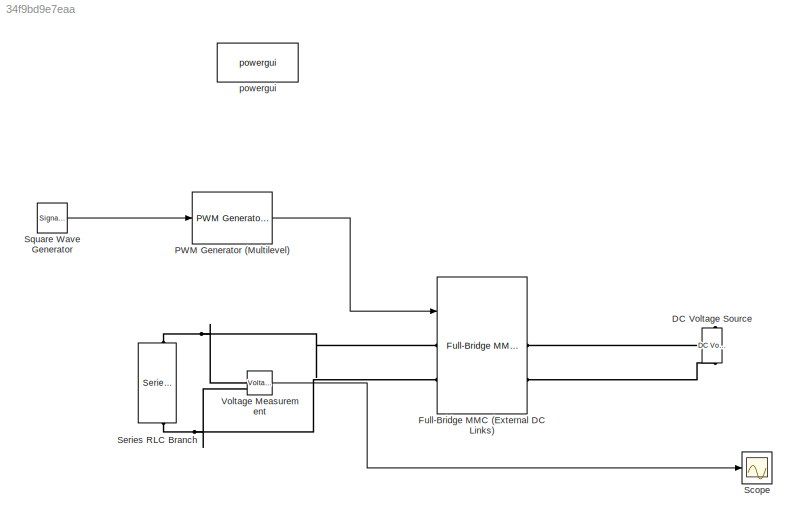
MODEL slx_34f9bd9e7eaa
KIND model
CONFIG AbsTol = auto
CONFIG EnableMultiTasking = off
CONFIG FixedStep = auto
CONFIG MaxStep = auto
CONFIG MinStep = auto
CONFIG RelTol = 1e-3
CONFIG SampleTimeConstraint = Unconstrained
CONFIG SolverName = VariableStepAuto
CONFIG StartTime = 0.0
CONFIG StopTime = 0.2
BLOCK [Reference] DC Voltage Source  REF=spsDCVoltageSourceLib/DC Voltage Source
  LibrarySourceBlock = sps_lib/Sources/DC Voltage Source
  SourceBlock = spsDCVoltageSourceLib/DC Voltage Source
  SourceType = DC Voltage Source
BLOCK [Reference] Full-Bridge MMC (External DC Links)  REF=spsFullBridgeMMCExternalDCLinksLib/Full-Bridge MMC
(External DC Links)
  LibrarySourceBlock = sps_lib/Power Electronics/Full-Bridge MMC\n(External DC Links)
  SourceBlock = spsFullBridgeMMCExternalDCLinksLib/Full-Bridge MMC\n(External DC Links)
  SourceType = Full-Bridge MMC (External DC Links)
BLOCK [Reference] PWM Generator (Multilevel)  REF=eePwmGeneratorMultilevel/PWM Generator
(Multilevel)
  LibrarySourceBlock = ee_sl_lib/Pulse Width\nModulation/PWM Generator\n(Multilevel)
  SourceBlock = eePwmGeneratorMultilevel/PWM Generator\n(Multilevel)
  SourceType = PWM Generator (Multilevel)
BLOCK [Scope] Scope
  Floating = off
  NumInputPorts = 1
  ScopeSpecificationString = Simulink.scopes.TimeScopeBlockCfg('CurrentConfiguration', extmgr.ConfigurationSet(extmgr.Configuration('Core','General UI',true),extmgr.Configuration('Core','Source UI',true),extmgr.Configuration('Sources','WiredSimulink',true),extmgr.Configuration('Visuals','Time Domain',true,'SerializedDisplays',{struct('MinYLimReal','-124.7505','MaxYLimReal','124.7505','YLabelReal','','MinYLimMag',' 0.00000','M...<+1491ch>
BLOCK [Reference] Series RLC Branch  REF=spsSeriesRLCBranchLib/Series RLC Branch
  LibrarySourceBlock = sps_lib/Passives/Series RLC Branch
  NameLocation = left
  SourceBlock = spsSeriesRLCBranchLib/Series RLC Branch
  SourceType = Series RLC Branch
BLOCK [SignalGenerator] Square Wave Generator
  Frequency = 100*pi
  Units = rad/sec
  WaveForm = square
BLOCK [Reference] Voltage Measurement  REF=spsVoltageMeasurementLib/Voltage Measurement
  LibrarySourceBlock = sps_lib/Sensors and Measurements/Voltage Measurement
  SourceBlock = spsVoltageMeasurementLib/Voltage Measurement
  SourceType = Voltage Measurement
  UserDataPersistent = on
BLOCK [Reference] powergui  REF=sps_lib/powergui
  LibrarySourceBlock = sps_lib/powergui
  Priority = 1
  SourceBlock = sps_lib/powergui
  SourceType = PSB option menu block
LINE PWM Generator (Multilevel):1 -> Full-Bridge MMC (External DC Links):1
LINE Square Wave Generator:1 -> PWM Generator (Multilevel):1
LINE Voltage Measurement:1 -> Scope:1
PLINE DC Voltage Source:LConn1 -- Full-Bridge MMC (External DC Links):RConn2
PLINE DC Voltage Source:RConn1 -- Full-Bridge MMC (External DC Links):RConn1
PNET net1: Full-Bridge MMC (External DC Links):LConn1 -- Series RLC Branch:LConn1 -- Voltage Measurement:LConn1
PNET net2: Full-Bridge MMC (External DC Links):LConn2 -- Series RLC Branch:RConn1 -- Voltage Measurement:LConn2
note: PNET lines group multi-terminal physical nets as a canonical sorted terminal list (undirected conserving connections); 2-terminal nets keep the pairwise PLINE form
